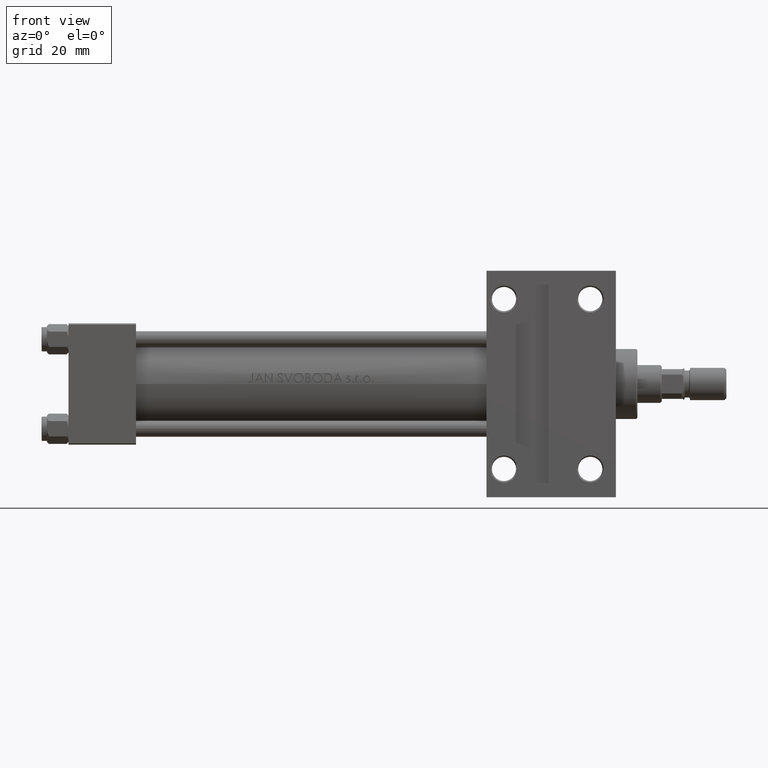
[diagram: clean part render]
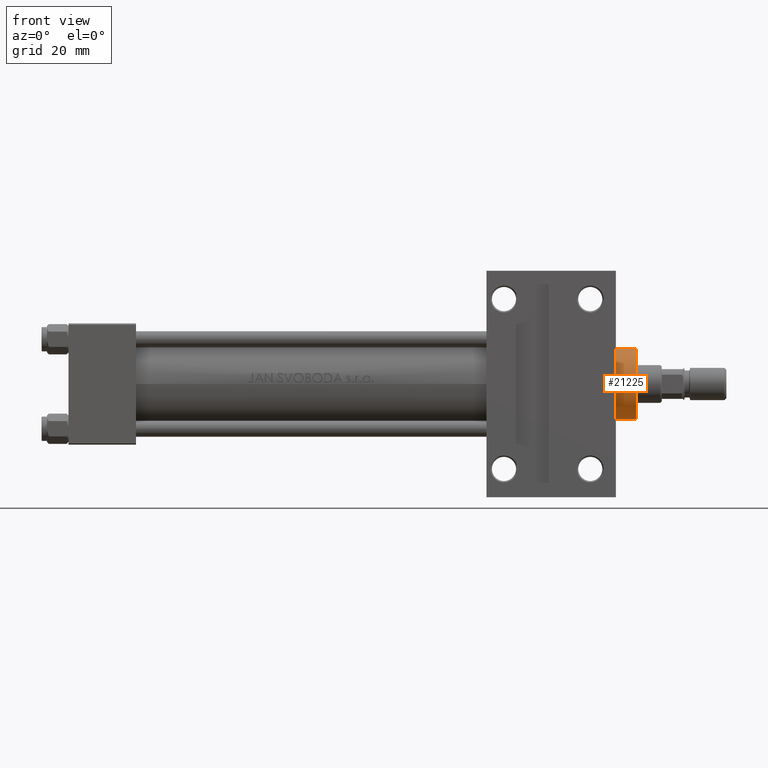
[diagram: same view with one face highlighted and labeled with its STEP entity id]
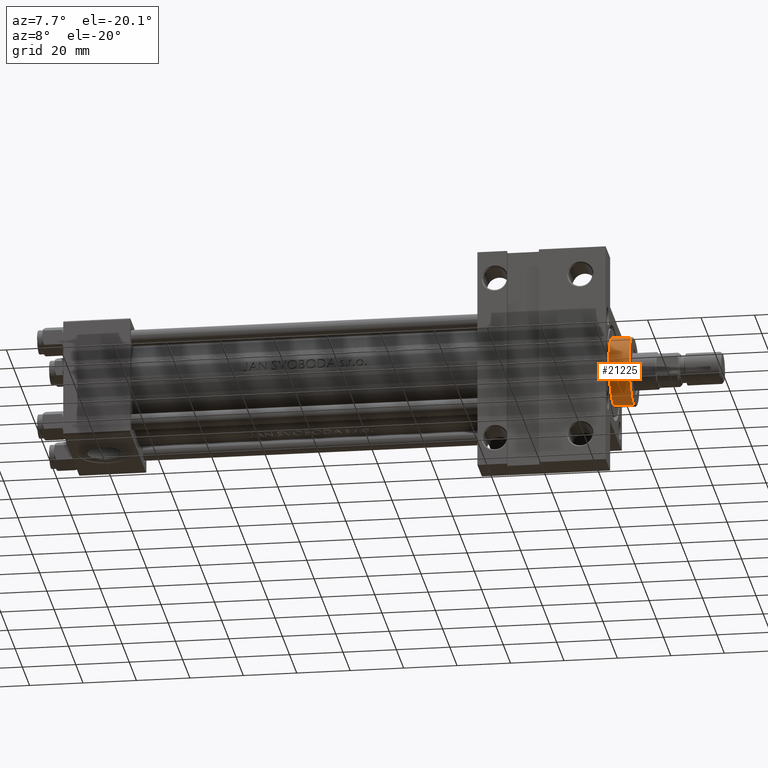
[diagram: same view with one face highlighted and labeled with its STEP entity id]
A machine part, front view. The second image highlights one B-rep face of the part: STEP entity #21225.
A second angle (auxiliary view) of the same face is appended — the face is thin or edge-on in the first view.
In plain terms, the highlighted cylindrical surface (edge-blend (fillet) strip) has radius 13 mm, axis along (-1, 0, 0).
Its self-contained STEP definition (entity closure, byte-faithful):
#4383 = FACE_OUTER_BOUND ( 'NONE', #45072, .T. ) ;
#6594 = VERTEX_POINT ( 'NONE', #38217 ) ;
#7391 = CARTESIAN_POINT ( 'NONE',  ( -13.00000000000000178, 0.000000000000000000, 36.20000000000000995 ) ) ;
#8063 = CARTESIAN_POINT ( 'NONE',  ( 13.00000000000000178, 1.592040838891559293E-15, 36.20000000000000995 ) ) ;
#8909 = AXIS2_PLACEMENT_3D ( 'NONE', #45303, #19249, #22661 ) ;
#12308 = CARTESIAN_POINT ( 'NONE',  ( -13.00000000000000178, 0.000000000000000000, 36.69999999999999574 ) ) ;
#13583 = DIRECTION ( 'NONE',  ( 1.000000000000000000, 0.000000000000000000, 0.000000000000000000 ) ) ;
#19249 = DIRECTION ( 'NONE',  ( -0.000000000000000000, -0.000000000000000000, -1.000000000000000000 ) ) ;
#21144 = DIRECTION ( 'NONE',  ( 0.000000000000000000, 0.000000000000000000, 1.000000000000000000 ) ) ;
#21225 = ADVANCED_FACE ( 'NONE', ( #4383 ), #45782, .T. ) ;
#21812 = DIRECTION ( 'NONE',  ( 1.000000000000000000, 0.000000000000000000, 0.000000000000000000 ) ) ;
#22014 = ORIENTED_EDGE ( 'NONE', *, *, #29041, .T. ) ;
#22594 = EDGE_CURVE ( 'NONE', #25351, #6594, #41502, .T. ) ;
#22661 = DIRECTION ( 'NONE',  ( -1.000000000000000000, 0.000000000000000000, 0.000000000000000000 ) ) ;
#25351 = VERTEX_POINT ( 'NONE', #8063 ) ;
#29041 = EDGE_CURVE ( 'NONE', #43924, #25351, #33933, .T. ) ;
#30542 = DIRECTION ( 'NONE',  ( -0.000000000000000000, -0.000000000000000000, -1.000000000000000000 ) ) ;
#32518 = ORIENTED_EDGE ( 'NONE', *, *, #22594, .T. ) ;
#33235 = CARTESIAN_POINT ( 'NONE',  ( 0.000000000000000000, 0.000000000000000000, 36.20000000000000995 ) ) ;
#33933 = CIRCLE ( 'NONE', #36245, 13.00000000000000178 ) ;
#34938 = LINE ( 'NONE', #12308, #36086 ) ;
#35461 = AXIS2_PLACEMENT_3D ( 'NONE', #39652, #21144, #13583 ) ;
#36086 = VECTOR ( 'NONE', #44978, 1000.000000000000000 ) ;
#36245 = AXIS2_PLACEMENT_3D ( 'NONE', #33235, #43965, #21812 ) ;
#37827 = CIRCLE ( 'NONE', #35461, 13.00000000000000178 ) ;
#38217 = CARTESIAN_POINT ( 'NONE',  ( 13.00000000000000178, 1.592040838891559293E-15, 28.69999999999999929 ) ) ;
#38507 = VECTOR ( 'NONE', #30542, 1000.000000000000000 ) ;
#39069 = ORIENTED_EDGE ( 'NONE', *, *, #47843, .T. ) ;
#39652 = CARTESIAN_POINT ( 'NONE',  ( 0.000000000000000000, 0.000000000000000000, 28.69999999999999929 ) ) ;
#40344 = VERTEX_POINT ( 'NONE', #45329 ) ;
#41025 = CARTESIAN_POINT ( 'NONE',  ( 13.00000000000000178, 1.592040838891559293E-15, 36.69999999999999574 ) ) ;
#41502 = LINE ( 'NONE', #41025, #38507 ) ;
#42100 = ORIENTED_EDGE ( 'NONE', *, *, #43006, .F. ) ;
#43006 = EDGE_CURVE ( 'NONE', #43924, #40344, #34938, .T. ) ;
#43924 = VERTEX_POINT ( 'NONE', #7391 ) ;
#43965 = DIRECTION ( 'NONE',  ( 0.000000000000000000, 0.000000000000000000, -1.000000000000000000 ) ) ;
#44978 = DIRECTION ( 'NONE',  ( -0.000000000000000000, -0.000000000000000000, -1.000000000000000000 ) ) ;
#45072 = EDGE_LOOP ( 'NONE', ( #22014, #32518, #39069, #42100 ) ) ;
#45303 = CARTESIAN_POINT ( 'NONE',  ( 0.000000000000000000, 0.000000000000000000, 36.69999999999999574 ) ) ;
#45329 = CARTESIAN_POINT ( 'NONE',  ( -13.00000000000000178, 0.000000000000000000, 28.69999999999999929 ) ) ;
#45782 = CYLINDRICAL_SURFACE ( 'NONE', #8909, 13.00000000000000178 ) ;
#47843 = EDGE_CURVE ( 'NONE', #6594, #40344, #37827, .T. ) ;